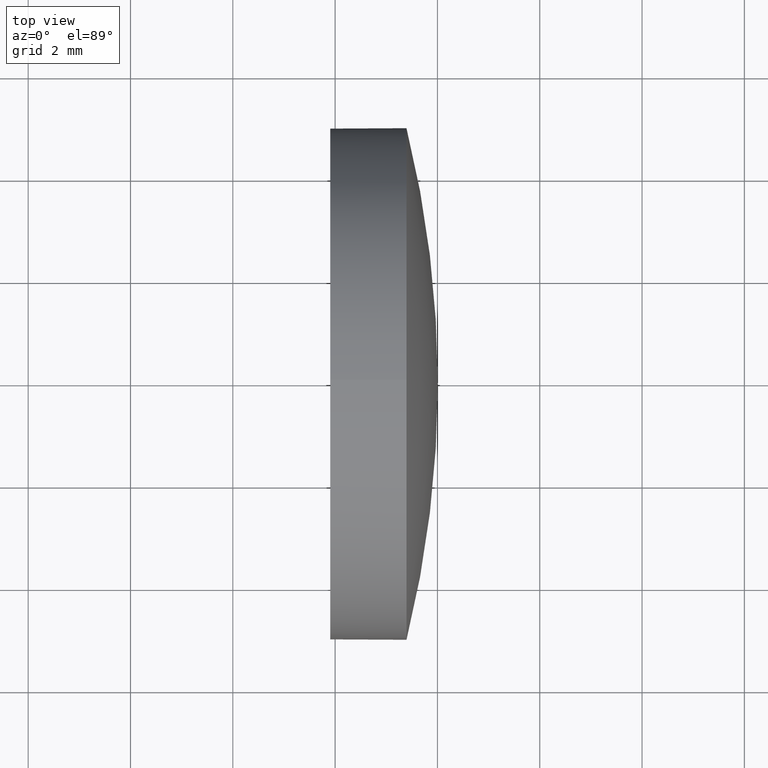
[diagram: clean part render]
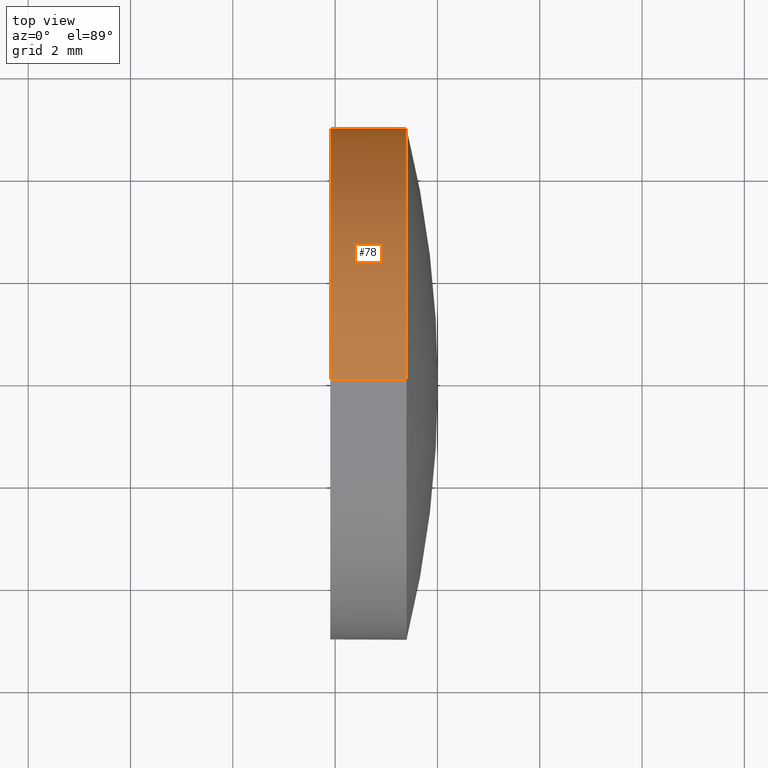
[diagram: same view with one face highlighted and labeled with its STEP entity id]
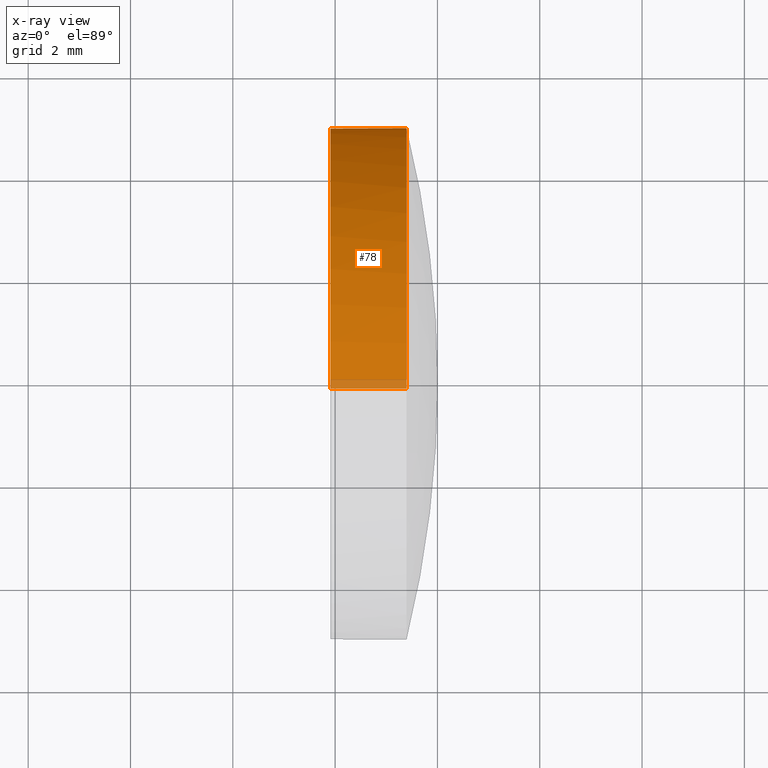
[diagram: x-ray of the same camera — body ghosted, the highlighted face saturated]
A machine part, top view. The second image highlights one B-rep face of the part: STEP entity #78.
The next image is the same camera in x-ray: the body ghosted, the highlighted face saturated — about 3% of this face is hidden behind the body in this view.
In plain terms, the highlighted cylindrical surface (partial cylindrical patch) has radius 5 mm, axis along (-1, -0, -0).
Its self-contained STEP definition (entity closure, byte-faithful):
#1 = FACE_OUTER_BOUND ( 'NONE', #95, .T. ) ;
#2 = DIRECTION ( 'NONE',  ( 0.0000000000000000000, 0.0000000000000000000, 1.000000000000000000 ) ) ;
#5 = DIRECTION ( 'NONE',  ( -1.000000000000000000, -0.0000000000000000000, -0.0000000000000000000 ) ) ;
#8 = ORIENTED_EDGE ( 'NONE', *, *, #167, .T. ) ;
#11 = EDGE_CURVE ( 'NONE', #13, #99, #126, .T. ) ;
#12 = VERTEX_POINT ( 'NONE', #110 ) ;
#13 = VERTEX_POINT ( 'NONE', #107 ) ;
#14 = EDGE_CURVE ( 'NONE', #13, #86, #65, .T. ) ;
#16 = EDGE_CURVE ( 'NONE', #86, #51, #168, .T. ) ;
#21 = DIRECTION ( 'NONE',  ( 0.0000000000000000000, 0.0000000000000000000, 1.000000000000000000 ) ) ;
#24 = ORIENTED_EDGE ( 'NONE', *, *, #14, .F. ) ;
#30 = ORIENTED_EDGE ( 'NONE', *, *, #16, .F. ) ;
#34 = DIRECTION ( 'NONE',  ( -1.000000000000000000, -0.0000000000000000000, -0.0000000000000000000 ) ) ;
#37 = DIRECTION ( 'NONE',  ( -1.000000000000000000, -0.0000000000000000000, -0.0000000000000000000 ) ) ;
#47 = ORIENTED_EDGE ( 'NONE', *, *, #90, .T. ) ;
#51 = VERTEX_POINT ( 'NONE', #158 ) ;
#57 = AXIS2_PLACEMENT_3D ( 'NONE', #59, #172, #169 ) ;
#59 = CARTESIAN_POINT ( 'NONE',  ( 601.9052396090429500, 21.94448567432954200, 0.0000000000000000000 ) ) ;
#63 = DIRECTION ( 'NONE',  ( -1.000000000000000000, -0.0000000000000000000, -0.0000000000000000000 ) ) ;
#65 = LINE ( 'NONE', #174, #147 ) ;
#67 = CARTESIAN_POINT ( 'NONE',  ( 603.3952396090428500, 26.94448567432957400, 6.123233995736636100E-016 ) ) ;
#71 = CYLINDRICAL_SURFACE ( 'NONE', #97, 4.999999999999997300 ) ;
#78 = ADVANCED_FACE ( 'NONE', ( #1 ), #71, .T. ) ;
#85 = DIRECTION ( 'NONE',  ( 0.0000000000000000000, 0.0000000000000000000, 1.000000000000000000 ) ) ;
#86 = VERTEX_POINT ( 'NONE', #113 ) ;
#90 = EDGE_CURVE ( 'NONE', #12, #51, #125, .T. ) ;
#95 = EDGE_LOOP ( 'NONE', ( #8, #47, #30, #24, #176 ) ) ;
#97 = AXIS2_PLACEMENT_3D ( 'NONE', #179, #37, #85 ) ;
#99 = VERTEX_POINT ( 'NONE', #67 ) ;
#107 = CARTESIAN_POINT ( 'NONE',  ( 603.3952396090428500, 21.94448567432954200, 4.999999999999997300 ) ) ;
#110 = CARTESIAN_POINT ( 'NONE',  ( 603.3952396090428500, 21.94448567432954200, -4.999999999999997300 ) ) ;
#113 = CARTESIAN_POINT ( 'NONE',  ( 601.9052396090429500, 21.94448567432954200, 4.999999999999997300 ) ) ;
#123 = VECTOR ( 'NONE', #133, 1000.000000000000000 ) ;
#125 = LINE ( 'NONE', #160, #123 ) ;
#126 = CIRCLE ( 'NONE', #181, 4.999999999999997300 ) ;
#133 = DIRECTION ( 'NONE',  ( -1.000000000000000000, -0.0000000000000000000, -0.0000000000000000000 ) ) ;
#147 = VECTOR ( 'NONE', #63, 1000.000000000000000 ) ;
#148 = CARTESIAN_POINT ( 'NONE',  ( 603.3952396090428500, 21.94448567432954200, 0.0000000000000000000 ) ) ;
#158 = CARTESIAN_POINT ( 'NONE',  ( 601.9052396090429500, 21.94448567432954200, -4.999999999999997300 ) ) ;
#160 = CARTESIAN_POINT ( 'NONE',  ( 601.1075673549775000, 21.94448567432954200, -4.999999999999997300 ) ) ;
#167 = EDGE_CURVE ( 'NONE', #99, #12, #173, .T. ) ;
#168 = CIRCLE ( 'NONE', #57, 4.999999999999997300 ) ;
#169 = DIRECTION ( 'NONE',  ( 0.0000000000000000000, 0.0000000000000000000, 1.000000000000000000 ) ) ;
#172 = DIRECTION ( 'NONE',  ( -1.000000000000000000, -0.0000000000000000000, -0.0000000000000000000 ) ) ;
#173 = CIRCLE ( 'NONE', #184, 4.999999999999997300 ) ;
#174 = CARTESIAN_POINT ( 'NONE',  ( 601.1075673549775000, 21.94448567432954200, 4.999999999999997300 ) ) ;
#175 = CARTESIAN_POINT ( 'NONE',  ( 603.3952396090428500, 21.94448567432954200, 0.0000000000000000000 ) ) ;
#176 = ORIENTED_EDGE ( 'NONE', *, *, #11, .T. ) ;
#179 = CARTESIAN_POINT ( 'NONE',  ( 601.1075673549775000, 21.94448567432954200, 0.0000000000000000000 ) ) ;
#181 = AXIS2_PLACEMENT_3D ( 'NONE', #148, #34, #2 ) ;
#184 = AXIS2_PLACEMENT_3D ( 'NONE', #175, #5, #21 ) ;